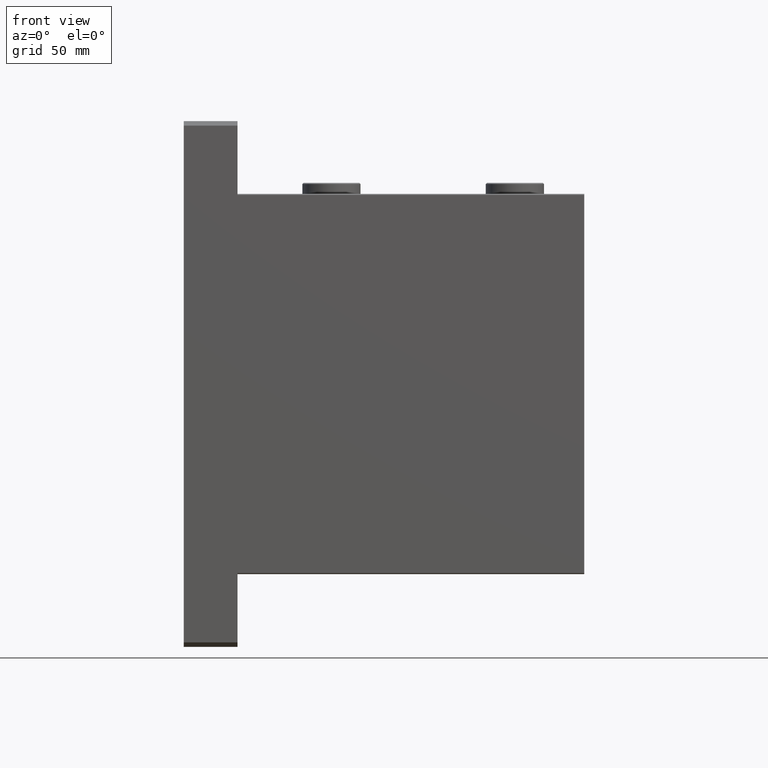
[diagram: clean part render]
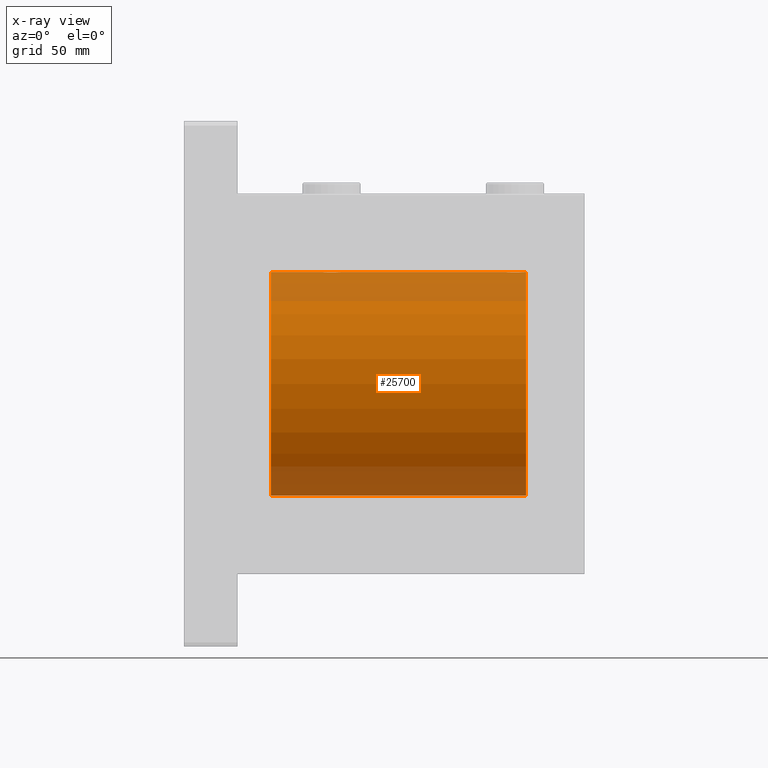
[diagram: x-ray — body ghosted, one internal face saturated and labeled with its STEP entity id]
A machine part, front view, then the same camera in x-ray: the body is ghosted and one INTERNAL B-rep face — a face not visible from any outside direction — is saturated and labeled: STEP entity #25700.
In plain terms, the highlighted cylindrical surface (partial cylindrical patch) has radius 50 mm, axis along (-1, -0, -0).
Its self-contained STEP definition (entity closure, byte-faithful):
#440 = CARTESIAN_POINT ( 'NONE',  ( 43.88217049484443777, -3.820681512513388611, 49.85392475515401145 ) ) ;
#687 = CARTESIAN_POINT ( 'NONE',  ( 38.62480015918034582, -2.597781786597465725, -49.93300953359122474 ) ) ;
#699 = CARTESIAN_POINT ( 'NONE',  ( 129.0000000000000000, 6.123233995736766085E-15, -50.00000000000000000 ) ) ;
#915 = CARTESIAN_POINT ( 'NONE',  ( 41.44002132304353125, -4.222042462213131842, 49.82145436824653473 ) ) ;
#921 = CARTESIAN_POINT ( 'NONE',  ( 44.13136399446156588, -3.687400765141522818, -49.86408552998298660 ) ) ;
#1318 = VECTOR ( 'NONE', #30547, 1000.000000000000000 ) ;
#1392 = ORIENTED_EDGE ( 'NONE', *, *, #15117, .F. ) ;
#1407 = CARTESIAN_POINT ( 'NONE',  ( 39.87368355124922203, -3.690299572754720980, -49.86386974736159772 ) ) ;
#1475 = CARTESIAN_POINT ( 'NONE',  ( 127.6860283212194958, -2.133925816755182225, 49.95498245321556396 ) ) ;
#1715 = CARTESIAN_POINT ( 'NONE',  ( 125.0973761787903555, -4.115209769591107403, 49.83039196709103891 ) ) ;
#1956 = CARTESIAN_POINT ( 'NONE',  ( 124.5540856488014754, -4.222816005855207777, 49.82138837911247720 ) ) ;
#2223 = CARTESIAN_POINT ( 'NONE',  ( 37.77689247201000455, -0.5531336717329051744, 49.99769193709643389 ) ) ;
#2295 = ORIENTED_EDGE ( 'NONE', *, *, #15779, .T. ) ;
#2343 = DIRECTION ( 'NONE',  ( -1.000000000000000000, 0.000000000000000000, 0.000000000000000000 ) ) ;
#2347 = ORIENTED_EDGE ( 'NONE', *, *, #3679, .T. ) ;
#2468 = CARTESIAN_POINT ( 'NONE',  ( 126.8115306651541658, -3.199146701881681487, -49.89793607725462010 ) ) ;
#2710 = CARTESIAN_POINT ( 'NONE',  ( 120.6248001591803387, -2.597781786597479936, -49.93300953359122474 ) ) ;
#2925 = CARTESIAN_POINT ( 'NONE',  ( 37.75000000000000711, -2.480809774739037926E-23, 50.00000000000000000 ) ) ;
#3043 = LINE ( 'NONE', #28991, #10302 ) ;
#3172 = CARTESIAN_POINT ( 'NONE',  ( 127.8210058198522603, -1.881229021238124632, -49.96525240872482954 ) ) ;
#3385 = CARTESIAN_POINT ( 'NONE',  ( 44.58820214676200777, -3.382416624899783564, 49.88570010427956447 ) ) ;
#3647 = CARTESIAN_POINT ( 'NONE',  ( 123.7160471297329991, -4.249777379711403569, 49.81906655360197789 ) ) ;
#3679 = EDGE_CURVE ( 'NONE', #13112, #8604, #3043, .T. ) ;
#3937 = EDGE_CURVE ( 'NONE', #19619, #24878, #10824, .T. ) ;
#4276 = CARTESIAN_POINT ( 'NONE',  ( 46.11249701080335228, -1.108337267831489115, 49.98846998601261760 ) ) ;
#4283 = CARTESIAN_POINT ( 'NONE',  ( 38.80078072038717352, -2.811461347331107419, -49.92127983148852621 ) ) ;
#4351 = CARTESIAN_POINT ( 'NONE',  ( 119.7768924720099903, -0.5531336717329051744, 49.99769193709643389 ) ) ;
#4522 = CARTESIAN_POINT ( 'NONE',  ( 46.25000000000000000, 6.123233970928580774E-15, -50.00000000000000000 ) ) ;
#4588 = CARTESIAN_POINT ( 'NONE',  ( 121.4068727911404437, -3.378657745070632767, 49.88595615988429444 ) ) ;
#4751 = CARTESIAN_POINT ( 'NONE',  ( 40.11255260607201478, -3.818052230167724215, 49.85412671291930309 ) ) ;
#5006 = CARTESIAN_POINT ( 'NONE',  ( 42.28395287026698668, -4.249777379711400904, -49.81906655360197789 ) ) ;
#5079 = CARTESIAN_POINT ( 'NONE',  ( 127.3751998408196329, -2.597781786597467057, 49.93300953359122474 ) ) ;
#5141 = ORIENTED_EDGE ( 'NONE', *, *, #22227, .F. ) ;
#5783 = CIRCLE ( 'NONE', #32614, 50.00000000000000000 ) ;
#5828 = CARTESIAN_POINT ( 'NONE',  ( 38.31062844320614147, -2.128188802142369163, 49.95522967821975158 ) ) ;
#5845 = CARTESIAN_POINT ( 'NONE',  ( 119.9692020384465678, -1.375411031076060997, -49.98173289062309976 ) ) ;
#6082 = CARTESIAN_POINT ( 'NONE',  ( 123.7227507296208415, -4.250219976861655979, -49.81902879621013369 ) ) ;
#6104 = CARTESIAN_POINT ( 'NONE',  ( 15.00000000000000000, 0.000000000000000000, 50.00000000000000000 ) ) ;
#6314 = CARTESIAN_POINT ( 'NONE',  ( 128.2500000000000000, 6.123233970923453178E-15, -50.00000000000000000 ) ) ;
#6548 = CARTESIAN_POINT ( 'NONE',  ( 119.7499999999999858, -0.2808785465865775155, -50.00000000000001421 ) ) ;
#6579 = CARTESIAN_POINT ( 'NONE',  ( 37.75000000000000711, -2.480809774739037926E-23, 50.00000000000000000 ) ) ;
#6976 = AXIS2_PLACEMENT_3D ( 'NONE', #18143, #36164, #18604 ) ;
#7094 = EDGE_CURVE ( 'NONE', #12492, #16000, #30364, .T. ) ;
#8010 = EDGE_CURVE ( 'NONE', #28004, #8014, #12986, .T. ) ;
#8014 = VERTEX_POINT ( 'NONE', #9615 ) ;
#8029 = DIRECTION ( 'NONE',  ( 0.000000000000000000, 0.000000000000000000, 1.000000000000000000 ) ) ;
#8361 = CARTESIAN_POINT ( 'NONE',  ( 46.22242635520780851, -0.5587117664567118336, 49.99763378604802000 ) ) ;
#8368 = CARTESIAN_POINT ( 'NONE',  ( 40.11782950515556934, -3.820681512513381506, -49.85392475515401145 ) ) ;
#8435 = CARTESIAN_POINT ( 'NONE',  ( 128.2224263552077730, -0.5587117664567089470, 49.99763378604803421 ) ) ;
#8604 = VERTEX_POINT ( 'NONE', #34026 ) ;
#8603 = CARTESIAN_POINT ( 'NONE',  ( 37.96920203844656783, -1.375411031076042789, -49.98173289062309976 ) ) ;
#8674 = CARTESIAN_POINT ( 'NONE',  ( 125.3671064755457536, -4.033756670430841851, 49.83713703490973757 ) ) ;
#9163 = CARTESIAN_POINT ( 'NONE',  ( 128.2500000000000284, -0.2808785465865650810, 50.00000000000002132 ) ) ;
#9399 = CARTESIAN_POINT ( 'NONE',  ( 125.8821704948444022, -3.820681512513372624, 49.85392475515399724 ) ) ;
#9615 = CARTESIAN_POINT ( 'NONE',  ( 128.2500000000000000, 6.123233970923453178E-15, -50.00000000000000000 ) ) ;
#9798 = VERTEX_POINT ( 'NONE', #6579 ) ;
#10148 = CARTESIAN_POINT ( 'NONE',  ( 120.8007807203871522, -2.811461347331123406, -49.92127983148851200 ) ) ;
#10151 = EDGE_LOOP ( 'NONE', ( #33472, #10830, #31618, #2347, #12215, #2295, #26560, #5141, #25581, #46755, #17313, #1392 ) ) ;
#10302 = VECTOR ( 'NONE', #43158, 1000.000000000000000 ) ;
#10356 = CARTESIAN_POINT ( 'NONE',  ( 37.96727357902688738, -1.369753890039657085, 49.98188917176553048 ) ) ;
#10618 = CARTESIAN_POINT ( 'NONE',  ( 122.1178295051555551, -3.820681512513399269, -49.85392475515401145 ) ) ;
#10824 = LINE ( 'NONE', #36993, #37141 ) ;
#10830 = ORIENTED_EDGE ( 'NONE', *, *, #8010, .T. ) ;
#10847 = CARTESIAN_POINT ( 'NONE',  ( 122.6266656342096582, -4.031616700143189291, 49.83731072121800310 ) ) ;
#10920 = FACE_OUTER_BOUND ( 'NONE', #10151, .T. ) ;
#11485 = CARTESIAN_POINT ( 'NONE',  ( 43.37333436579036317, -4.031616700143180410, -49.83731072121798888 ) ) ;
#11716 = CARTESIAN_POINT ( 'NONE',  ( 45.81839248987871827, -1.886522330773423572, 49.96505190380066352 ) ) ;
#11789 = CARTESIAN_POINT ( 'NONE',  ( 120.1789941801477539, -1.881229021238129073, 49.96525240872482243 ) ) ;
#11967 = CARTESIAN_POINT ( 'NONE',  ( 38.18160751012128884, -1.886522330773416911, -49.96505190380066352 ) ) ;
#12042 = CARTESIAN_POINT ( 'NONE',  ( 127.1992192796128336, -2.811461347331102534, 49.92127983148852621 ) ) ;
#12215 = ORIENTED_EDGE ( 'NONE', *, *, #47462, .T. ) ;
#12341 = EDGE_CURVE ( 'NONE', #19619, #45803, #31411, .T. ) ;
#12492 = VERTEX_POINT ( 'NONE', #28605 ) ;
#12584 = DIRECTION ( 'NONE',  ( -1.000000000000000000, 0.000000000000000000, 0.000000000000000000 ) ) ;
#12762 = CARTESIAN_POINT ( 'NONE',  ( 128.2499999999999716, 4.902412868109812945E-15, 50.00000000000000000 ) ) ;
#12986 = LINE ( 'NONE', #13692, #38844 ) ;
#13112 = VERTEX_POINT ( 'NONE', #36332 ) ;
#13255 = CARTESIAN_POINT ( 'NONE',  ( 39.18846933484581285, -3.199146701881677934, 49.89793607725460589 ) ) ;
#13275 = CARTESIAN_POINT ( 'NONE',  ( 121.8736835512492149, -3.690299572754727642, -49.86386974736159772 ) ) ;
#13629 = DIRECTION ( 'NONE',  ( 0.000000000000000000, 0.000000000000000000, 1.000000000000000000 ) ) ;
#13692 = CARTESIAN_POINT ( 'NONE',  ( 129.0000000000000000, 6.123233995736766085E-15, -50.00000000000000000 ) ) ;
#13761 = CARTESIAN_POINT ( 'NONE',  ( 128.2231075279900381, -0.5531336717328986241, -49.99769193709643389 ) ) ;
#13803 = CARTESIAN_POINT ( 'NONE',  ( 37.75000000000000711, -7.073857814331912646E-15, -50.00000000000000000 ) ) ;
#14223 = CARTESIAN_POINT ( 'NONE',  ( 128.2500000000000000, -0.2773743941468452823, -50.00000000000000711 ) ) ;
#15087 = CARTESIAN_POINT ( 'NONE',  ( 46.25000000000001421, -0.2808785465865648034, 50.00000000000001421 ) ) ;
#15117 = EDGE_CURVE ( 'NONE', #23769, #45803, #41342, .T. ) ;
#15565 = CARTESIAN_POINT ( 'NONE',  ( 42.27724927037917979, -4.250219976861652427, 49.81902879621013369 ) ) ;
#15572 = CARTESIAN_POINT ( 'NONE',  ( 42.55997867695648296, -4.222042462213118519, -49.82145436824653473 ) ) ;
#15641 = CARTESIAN_POINT ( 'NONE',  ( 127.8183924898787183, -1.886522330773413358, 49.96505190380066352 ) ) ;
#15779 = EDGE_CURVE ( 'NONE', #22478, #12492, #44314, .T. ) ;
#15814 = CARTESIAN_POINT ( 'NONE',  ( 46.25000000000000000, -0.2773743941468464480, -50.00000000000000711 ) ) ;
#15894 = CARTESIAN_POINT ( 'NONE',  ( 129.0000000000000000, 0.000000000000000000, 50.00000000000000000 ) ) ;
#16000 = VERTEX_POINT ( 'NONE', #6104 ) ;
#16060 = CARTESIAN_POINT ( 'NONE',  ( 37.77757364479220570, -0.5587117664567219366, -49.99763378604802000 ) ) ;
#16237 = B_SPLINE_CURVE_WITH_KNOTS ( 'NONE', 3,
 ( #6314, #14223, #13761, #27941, #28654, #3172, #17829, #28185, #47142, #2468, #35616, #32471, #24580, #43290, #42824, #39219, #17122, #6082, #28890, #35377, #43529, #10618, #13275, #43059, #38744, #10148, #2710, #32018, #31776, #5845, #39450, #35863, #6548, #46443 ),
 .UNSPECIFIED., .F., .F.,
 ( 4, 2, 2, 2, 2, 2, 2, 2, 2, 2, 2, 2, 2, 2, 2, 2, 4 ),
 ( 0.01329343152928756308, 0.01412407817529634686, 0.01495472482130513238, 0.01578537146731391616, 0.01661601811332270168, 0.01744666475933148719, 0.01827731140534026924, 0.01910795805134905476, 0.01993860469735783680, 0.02076925134336662232, 0.02159989798937540784, 0.02243054463538419335, 0.02326119128139297540, 0.02409183792740176092, 0.02492248457341054296, 0.02575313121941932848, 0.02658377786542811400 ),
 .UNSPECIFIED. ) ;
#16874 = CARTESIAN_POINT ( 'NONE',  ( 38.62118282736263097, -2.593114840406133492, 49.93325460257641168 ) ) ;
#17122 = CARTESIAN_POINT ( 'NONE',  ( 124.2839528702669725, -4.249777379711414227, -49.81906655360197789 ) ) ;
#17313 = ORIENTED_EDGE ( 'NONE', *, *, #12341, .T. ) ;
#17809 = CARTESIAN_POINT ( 'NONE',  ( 39.86863600553844122, -3.687400765141535253, 49.86408552998298660 ) ) ;
#17829 = CARTESIAN_POINT ( 'NONE',  ( 127.6893715567938585, -2.128188802142362945, -49.95522967821975158 ) ) ;
#18041 = CARTESIAN_POINT ( 'NONE',  ( 42.55408564880149669, -4.222816005855214883, 49.82138837911247009 ) ) ;
#18143 = CARTESIAN_POINT ( 'NONE',  ( 129.0000000000000000, 0.000000000000000000, 0.000000000000000000 ) ) ;
#18302 = CARTESIAN_POINT ( 'NONE',  ( 124.2772492703791727, -4.250219976861645321, 49.81902879621014790 ) ) ;
#18604 = DIRECTION ( 'NONE',  ( 0.000000000000000000, 0.000000000000000000, 1.000000000000000000 ) ) ;
#18942 = CARTESIAN_POINT ( 'NONE',  ( 43.10323296034216156, -4.113647494206476907, -49.83052139214892406 ) ) ;
#19010 = CARTESIAN_POINT ( 'NONE',  ( 119.9672735790268376, -1.369753890039655975, 49.98188917176552337 ) ) ;
#19619 = VERTEX_POINT ( 'NONE', #27886 ) ;
#21751 = DIRECTION ( 'NONE',  ( -1.000000000000000000, -0.000000000000000000, -0.000000000000000000 ) ) ;
#21773 = CARTESIAN_POINT ( 'NONE',  ( 15.00000000000000000, 0.000000000000000000, 0.000000000000000000 ) ) ;
#21909 = CARTESIAN_POINT ( 'NONE',  ( 122.8967670396578598, -4.113647494206484012, 49.83052139214893117 ) ) ;
#22227 = EDGE_CURVE ( 'NONE', #9798, #16000, #29905, .T. ) ;
#22315 = CARTESIAN_POINT ( 'NONE',  ( 129.0000000000000000, 0.000000000000000000, 50.00000000000000000 ) ) ;
#22478 = VERTEX_POINT ( 'NONE', #13803 ) ;
#22545 = CARTESIAN_POINT ( 'NONE',  ( 44.81153066515419425, -3.199146701881665500, -49.89793607725460589 ) ) ;
#22860 = CARTESIAN_POINT ( 'NONE',  ( 120.7969643804801052, -2.807099414226272405, 49.92152599098507437 ) ) ;
#23027 = CARTESIAN_POINT ( 'NONE',  ( 37.75000000000000711, -7.073857814331912646E-15, -50.00000000000000000 ) ) ;
#23100 = VECTOR ( 'NONE', #40933, 1000.000000000000000 ) ;
#23259 = CARTESIAN_POINT ( 'NONE',  ( 45.19921927961282648, -2.811461347331111416, 49.92127983148852621 ) ) ;
#23270 = CARTESIAN_POINT ( 'NONE',  ( 40.63289352445426772, -4.033756670430848068, -49.83713703490974467 ) ) ;
#23769 = VERTEX_POINT ( 'NONE', #22315 ) ;
#24063 = CARTESIAN_POINT ( 'NONE',  ( 126.8069783183931065, -3.203153387937318186, 49.89767833571684008 ) ) ;
#24580 = CARTESIAN_POINT ( 'NONE',  ( 125.8874473939280136, -3.818052230167727323, -49.85412671291929598 ) ) ;
#24878 = VERTEX_POINT ( 'NONE', #45626 ) ;
#25581 = ORIENTED_EDGE ( 'NONE', *, *, #36326, .T. ) ;
#25584 = CYLINDRICAL_SURFACE ( 'NONE', #6976, 50.00000000000000000 ) ;
#25700 = ADVANCED_FACE ( 'NONE', ( #10920 ), #25584, .F. ) ;
#26152 = CARTESIAN_POINT ( 'NONE',  ( 44.59312720885956338, -3.378657745070617224, -49.88595615988430154 ) ) ;
#26298 = CARTESIAN_POINT ( 'NONE',  ( 129.0000000000000000, 0.000000000000000000, 50.00000000000000000 ) ) ;
#26456 = CARTESIAN_POINT ( 'NONE',  ( 120.3106284432061273, -2.128188802142369163, 49.95522967821973737 ) ) ;
#26560 = ORIENTED_EDGE ( 'NONE', *, *, #7094, .T. ) ;
#26619 = CARTESIAN_POINT ( 'NONE',  ( 41.71604712973302753, -4.249777379711412451, 49.81906655360197789 ) ) ;
#26630 = CARTESIAN_POINT ( 'NONE',  ( 37.88750298919666903, -1.108337267831496886, -49.98846998601261760 ) ) ;
#26938 = CARTESIAN_POINT ( 'NONE',  ( 128.1124970108033096, -1.108337267831486006, 49.98846998601263181 ) ) ;
#27293 = AXIS2_PLACEMENT_3D ( 'NONE', #21773, #2343, #13629 ) ;
#27691 = CARTESIAN_POINT ( 'NONE',  ( 38.17899418014773971, -1.881229021238130183, 49.96525240872482954 ) ) ;
#27886 = CARTESIAN_POINT ( 'NONE',  ( 119.7500000000000000, -2.480297015150644268E-23, 50.00000000000000000 ) ) ;
#27941 = CARTESIAN_POINT ( 'NONE',  ( 128.1143191330600359, -1.101350136471738850, -49.98862054280448319 ) ) ;
#28004 = VERTEX_POINT ( 'NONE', #699 ) ;
#28185 = CARTESIAN_POINT ( 'NONE',  ( 127.3788171726373548, -2.593114840406129940, -49.93325460257641168 ) ) ;
#28605 = CARTESIAN_POINT ( 'NONE',  ( 15.00000000000000000, 6.123233995736766085E-15, -50.00000000000000000 ) ) ;
#28633 = CARTESIAN_POINT ( 'NONE',  ( 37.88568086693992143, -1.101350136471744845, 49.98862054280448319 ) ) ;
#28654 = CARTESIAN_POINT ( 'NONE',  ( 128.0327264209731197, -1.369753890039650202, -49.98188917176553048 ) ) ;
#28890 = CARTESIAN_POINT ( 'NONE',  ( 123.4459143511985246, -4.222816005855221100, -49.82138837911247009 ) ) ;
#28991 = CARTESIAN_POINT ( 'NONE',  ( 129.0000000000000000, 6.123233995736766085E-15, -50.00000000000000000 ) ) ;
#29127 = CARTESIAN_POINT ( 'NONE',  ( 119.8856808669399072, -1.101350136471743735, 49.98862054280448319 ) ) ;
#29759 = CARTESIAN_POINT ( 'NONE',  ( 46.22310752799000966, -0.5531336717328987351, -49.99769193709643389 ) ) ;
#29905 = LINE ( 'NONE', #26298, #23100 ) ;
#29986 = CARTESIAN_POINT ( 'NONE',  ( 39.40687279114045083, -3.378657745070629659, 49.88595615988430154 ) ) ;
#29993 = CARTESIAN_POINT ( 'NONE',  ( 45.68937155679385853, -2.128188802142358949, -49.95522967821975158 ) ) ;
#30225 = CARTESIAN_POINT ( 'NONE',  ( 45.37881717263736192, -2.593114840406122390, -49.93325460257641168 ) ) ;
#30364 = CIRCLE ( 'NONE', #27293, 50.00000000000000000 ) ;
#30532 = VECTOR ( 'NONE', #21751, 1000.000000000000000 ) ;
#30547 = DIRECTION ( 'NONE',  ( -1.000000000000000000, -0.000000000000000000, -0.000000000000000000 ) ) ;
#30712 = CARTESIAN_POINT ( 'NONE',  ( 39.19302168160691480, -3.203153387937319962, -49.89767833571684719 ) ) ;
#31019 = CARTESIAN_POINT ( 'NONE',  ( 128.0307979615534464, -1.375411031076037460, 49.98173289062309976 ) ) ;
#31411 = B_SPLINE_CURVE_WITH_KNOTS ( 'NONE', 3,
 ( #40851, #44708, #4351, #29127, #19010, #11789, #26456, #41097, #22860, #37505, #4588, #32718, #43760, #10847, #21909, #36553, #3647, #18302, #1956, #1715, #8674, #9399, #37980, #41575, #24063, #12042, #5079, #1475, #15641, #31019, #26938, #8435, #9163, #12762 ),
 .UNSPECIFIED., .F., .F.,
 ( 4, 2, 2, 2, 2, 2, 2, 2, 2, 2, 2, 2, 2, 2, 2, 2, 4 ),
 ( 0.01329343152928749543, 0.01412407817529626013, 0.01495472482130502483, 0.01578537146731378779, 0.01661601811332255249, 0.01744666475933131719, 0.01827731140534008189, 0.01910795805134884659, 0.01993860469735761129, 0.02076925134336637599, 0.02159989798937517885, 0.02243054463538398519, 0.02326119128139279152, 0.02409183792740159785, 0.02492248457341040419, 0.02575313121941921052, 0.02658377786542801685 ),
 .UNSPECIFIED. ) ;
#31523 = CARTESIAN_POINT ( 'NONE',  ( 38.79696438048009099, -2.807099414226281731, 49.92152599098507437 ) ) ;
#31618 = ORIENTED_EDGE ( 'NONE', *, *, #38444, .T. ) ;
#31776 = CARTESIAN_POINT ( 'NONE',  ( 120.1816075101212675, -1.886522330773437339, -49.96505190380065642 ) ) ;
#32018 = CARTESIAN_POINT ( 'NONE',  ( 120.3139716787804758, -2.133925816755196880, -49.95498245321555686 ) ) ;
#32227 = CARTESIAN_POINT ( 'NONE',  ( 37.75000000000001421, -0.2773743941468532759, 50.00000000000000711 ) ) ;
#32451 = CARTESIAN_POINT ( 'NONE',  ( 44.12631644875080639, -3.690299572754724533, 49.86386974736159772 ) ) ;
#32471 = CARTESIAN_POINT ( 'NONE',  ( 126.1313639944615659, -3.687400765141528591, -49.86408552998298660 ) ) ;
#32614 = AXIS2_PLACEMENT_3D ( 'NONE', #38051, #12584, #8029 ) ;
#32694 = CARTESIAN_POINT ( 'NONE',  ( 40.89676703965783844, -4.113647494206490229, 49.83052139214891696 ) ) ;
#32718 = CARTESIAN_POINT ( 'NONE',  ( 121.8686360055384768, -3.687400765141539249, 49.86408552998300081 ) ) ;
#33338 = CARTESIAN_POINT ( 'NONE',  ( 45.82100581985226739, -1.881229021238118859, -49.96525240872482954 ) ) ;
#33472 = ORIENTED_EDGE ( 'NONE', *, *, #40495, .F. ) ;
#33581 = CARTESIAN_POINT ( 'NONE',  ( 40.90262382120964446, -4.115209769591110067, -49.83039196709102470 ) ) ;
#33810 = CARTESIAN_POINT ( 'NONE',  ( 40.62666563420963683, -4.031616700143192844, 49.83731072121799599 ) ) ;
#33821 = CARTESIAN_POINT ( 'NONE',  ( 46.11431913306007857, -1.101350136471736629, -49.98862054280448319 ) ) ;
#34026 = CARTESIAN_POINT ( 'NONE',  ( 46.25000000000000000, 6.123233970928580774E-15, -50.00000000000000000 ) ) ;
#34310 = CARTESIAN_POINT ( 'NONE',  ( 45.20303561951990901, -2.807099414226270184, -49.92152599098507437 ) ) ;
#35377 = CARTESIAN_POINT ( 'NONE',  ( 122.9026238212096303, -4.115209769591122502, -49.83039196709102470 ) ) ;
#35616 = CARTESIAN_POINT ( 'NONE',  ( 126.5931272088595705, -3.378657745070619445, -49.88595615988430154 ) ) ;
#35863 = CARTESIAN_POINT ( 'NONE',  ( 119.7775736447921986, -0.5587117664567315956, -49.99763378604802000 ) ) ;
#36164 = DIRECTION ( 'NONE',  ( -1.000000000000000000, -0.000000000000000000, -0.000000000000000000 ) ) ;
#36326 = EDGE_CURVE ( 'NONE', #9798, #24878, #45614, .T. ) ;
#36332 = CARTESIAN_POINT ( 'NONE',  ( 119.7499999999999858, -1.552464266337571260E-14, -50.00000000000000000 ) ) ;
#36553 = CARTESIAN_POINT ( 'NONE',  ( 123.4400213230435099, -4.222042462213122072, 49.82145436824654183 ) ) ;
#36947 = CARTESIAN_POINT ( 'NONE',  ( 41.44591435119853173, -4.222816005855206001, -49.82138837911246299 ) ) ;
#36993 = CARTESIAN_POINT ( 'NONE',  ( 129.0000000000000000, 0.000000000000000000, 50.00000000000000000 ) ) ;
#37141 = VECTOR ( 'NONE', #40359, 1000.000000000000000 ) ;
#37185 = CARTESIAN_POINT ( 'NONE',  ( 39.41179785323799933, -3.382416624899781787, -49.88570010427956447 ) ) ;
#37440 = B_SPLINE_CURVE_WITH_KNOTS ( 'NONE', 3,
 ( #4522, #15814, #29759, #33821, #44409, #33338, #29993, #30225, #34310, #22545, #26152, #921, #41025, #11485, #18942, #15572, #5006, #44880, #36947, #33581, #23270, #8368, #1407, #37185, #30712, #4283, #687, #40780, #11967, #8603, #26630, #16060, #44642, #23027 ),
 .UNSPECIFIED., .F., .F.,
 ( 4, 2, 2, 2, 2, 2, 2, 2, 2, 2, 2, 2, 2, 2, 2, 2, 4 ),
 ( 0.01329343152928756308, 0.01412407817529634686, 0.01495472482130513064, 0.01578537146731391269, 0.01661601811332269821, 0.01744666475933148025, 0.01827731140534026577, 0.01910795805134904782, 0.01993860469735782986, 0.02076925134336661538, 0.02159989798937540090, 0.02243054463538418294, 0.02326119128139296499, 0.02409183792740175051, 0.02492248457341053255, 0.02575313121941931460, 0.02658377786542810012 ),
 .UNSPECIFIED. ) ;
#37505 = CARTESIAN_POINT ( 'NONE',  ( 121.1884693348457915, -3.199146701881667276, 49.89793607725462010 ) ) ;
#37664 = CARTESIAN_POINT ( 'NONE',  ( 46.03079796155342507, -1.375411031076046786, 49.98173289062309976 ) ) ;
#37900 = CARTESIAN_POINT ( 'NONE',  ( 45.37519984081967550, -2.597781786597470610, 49.93300953359122474 ) ) ;
#37980 = CARTESIAN_POINT ( 'NONE',  ( 126.1263164487507709, -3.690299572754721869, 49.86386974736159061 ) ) ;
#38051 = CARTESIAN_POINT ( 'NONE',  ( 129.0000000000000000, 0.000000000000000000, 0.000000000000000000 ) ) ;
#38444 = EDGE_CURVE ( 'NONE', #8014, #13112, #16237, .T. ) ;
#38679 = DIRECTION ( 'NONE',  ( -1.000000000000000000, -0.000000000000000000, -0.000000000000000000 ) ) ;
#38744 = CARTESIAN_POINT ( 'NONE',  ( 121.1930216816068935, -3.203153387937336394, -49.89767833571684719 ) ) ;
#38844 = VECTOR ( 'NONE', #38679, 1000.000000000000000 ) ;
#39219 = CARTESIAN_POINT ( 'NONE',  ( 124.5599786769564474, -4.222042462213132730, -49.82145436824653473 ) ) ;
#39450 = CARTESIAN_POINT ( 'NONE',  ( 119.8875029891966335, -1.108337267831507766, -49.98846998601261760 ) ) ;
#40359 = DIRECTION ( 'NONE',  ( -1.000000000000000000, -0.000000000000000000, -0.000000000000000000 ) ) ;
#40495 = EDGE_CURVE ( 'NONE', #28004, #23769, #5783, .T. ) ;
#40780 = CARTESIAN_POINT ( 'NONE',  ( 38.31397167878049714, -2.133925816755183114, -49.95498245321557818 ) ) ;
#40851 = CARTESIAN_POINT ( 'NONE',  ( 119.7500000000000000, -2.480297015150644268E-23, 50.00000000000000000 ) ) ;
#40933 = DIRECTION ( 'NONE',  ( -1.000000000000000000, -0.000000000000000000, -0.000000000000000000 ) ) ;
#41017 = CARTESIAN_POINT ( 'NONE',  ( 43.09737617879038396, -4.115209769591117173, 49.83039196709102470 ) ) ;
#41025 = CARTESIAN_POINT ( 'NONE',  ( 43.88744739392799943, -3.818052230167712668, -49.85412671291930309 ) ) ;
#41097 = CARTESIAN_POINT ( 'NONE',  ( 120.6211828273626026, -2.593114840406131716, 49.93325460257638326 ) ) ;
#41342 = LINE ( 'NONE', #15894, #1318 ) ;
#41575 = CARTESIAN_POINT ( 'NONE',  ( 126.5882021467620007, -3.382416624899781787, 49.88570010427956447 ) ) ;
#42824 = CARTESIAN_POINT ( 'NONE',  ( 125.1032329603421545, -4.113647494206490229, -49.83052139214891696 ) ) ;
#43059 = CARTESIAN_POINT ( 'NONE',  ( 121.4117978532379709, -3.382416624899787561, -49.88570010427956447 ) ) ;
#43158 = DIRECTION ( 'NONE',  ( -1.000000000000000000, -0.000000000000000000, -0.000000000000000000 ) ) ;
#43290 = CARTESIAN_POINT ( 'NONE',  ( 125.3733343657903418, -4.031616700143195509, -49.83731072121799599 ) ) ;
#43372 = CARTESIAN_POINT ( 'NONE',  ( 129.0000000000000000, 6.123233995736766085E-15, -50.00000000000000000 ) ) ;
#43529 = CARTESIAN_POINT ( 'NONE',  ( 122.6328935244542606, -4.033756670430865832, -49.83713703490974467 ) ) ;
#43760 = CARTESIAN_POINT ( 'NONE',  ( 122.1125526060720148, -3.818052230167721994, 49.85412671291930309 ) ) ;
#44314 = LINE ( 'NONE', #43372, #30532 ) ;
#44400 = CARTESIAN_POINT ( 'NONE',  ( 43.36710647554575360, -4.033756670430856062, 49.83713703490974467 ) ) ;
#44409 = CARTESIAN_POINT ( 'NONE',  ( 46.03272642097311973, -1.369753890039645983, -49.98188917176553048 ) ) ;
#44636 = CARTESIAN_POINT ( 'NONE',  ( 44.80697831839309941, -3.203153387937326180, 49.89767833571684719 ) ) ;
#44642 = CARTESIAN_POINT ( 'NONE',  ( 37.75000000000001421, -0.2808785465865695774, -50.00000000000001421 ) ) ;
#44708 = CARTESIAN_POINT ( 'NONE',  ( 119.7500000000000000, -0.2773743941468521657, 50.00000000000001421 ) ) ;
#44872 = CARTESIAN_POINT ( 'NONE',  ( 45.68602832121950286, -2.133925816755187110, 49.95498245321557818 ) ) ;
#44880 = CARTESIAN_POINT ( 'NONE',  ( 41.72275072962083442, -4.250219976861640880, -49.81902879621014080 ) ) ;
#45451 = CARTESIAN_POINT ( 'NONE',  ( 128.2499999999999716, 4.902412868109812945E-15, 50.00000000000000000 ) ) ;
#45614 = B_SPLINE_CURVE_WITH_KNOTS ( 'NONE', 3,
 ( #2925, #32227, #2223, #28633, #10356, #27691, #5828, #16874, #31523, #13255, #29986, #17809, #4751, #33810, #32694, #915, #26619, #15565, #18041, #41017, #44400, #440, #32451, #3385, #44636, #23259, #37900, #44872, #11716, #37664, #4276, #8361, #15087, #47120 ),
 .UNSPECIFIED., .F., .F.,
 ( 4, 2, 2, 2, 2, 2, 2, 2, 2, 2, 2, 2, 2, 2, 2, 2, 4 ),
 ( 0.01329343152928754226, 0.01412407817529632605, 0.01495472482130511156, 0.01578537146731389534, 0.01661601811332268086, 0.01744666475933146638, 0.01827731140534024842, 0.01910795805134903394, 0.01993860469735781599, 0.02076925134336660150, 0.02159989798937538702, 0.02243054463538417254, 0.02326119128139295458, 0.02409183792740174010, 0.02492248457341052215, 0.02575313121941930766, 0.02658377786542809318 ),
 .UNSPECIFIED. ) ;
#45626 = CARTESIAN_POINT ( 'NONE',  ( 46.25000000000000000, 5.695507803017738218E-16, 50.00000000000000000 ) ) ;
#45803 = VERTEX_POINT ( 'NONE', #45451 ) ;
#46443 = CARTESIAN_POINT ( 'NONE',  ( 119.7499999999999858, -1.552464266337571260E-14, -50.00000000000000000 ) ) ;
#46755 = ORIENTED_EDGE ( 'NONE', *, *, #3937, .F. ) ;
#47120 = CARTESIAN_POINT ( 'NONE',  ( 46.25000000000000000, 5.695507803017738218E-16, 50.00000000000000000 ) ) ;
#47142 = CARTESIAN_POINT ( 'NONE',  ( 127.2030356195199232, -2.807099414226285727, -49.92152599098507437 ) ) ;
#47462 = EDGE_CURVE ( 'NONE', #8604, #22478, #37440, .T. ) ;